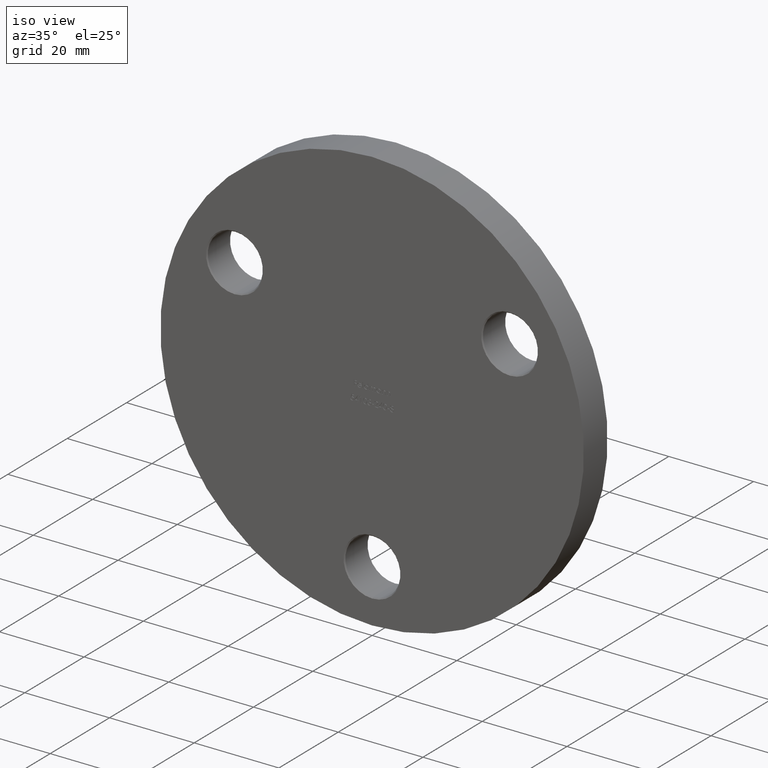
[diagram: clean part render]
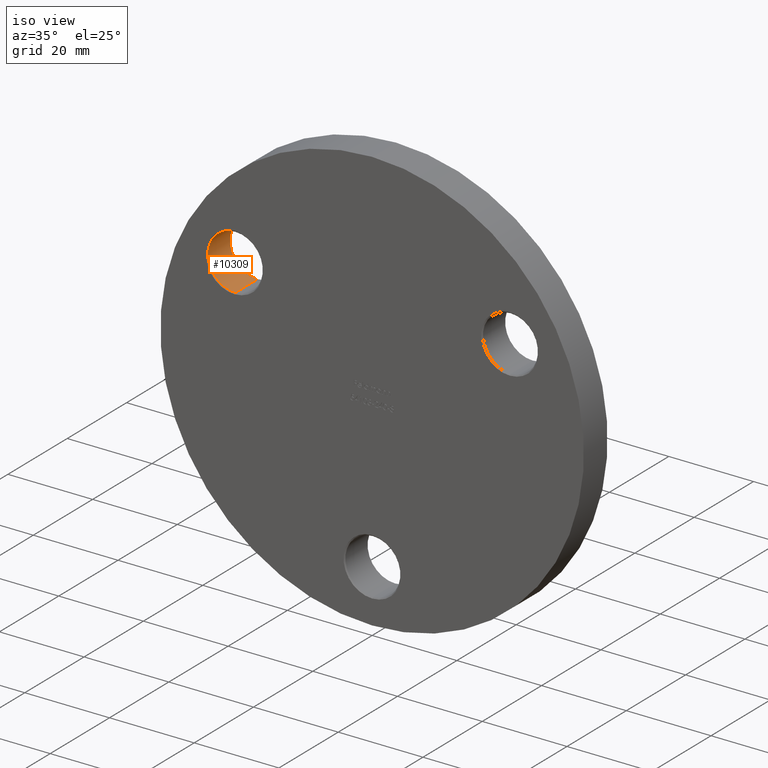
[diagram: same view with one face highlighted and labeled with its STEP entity id]
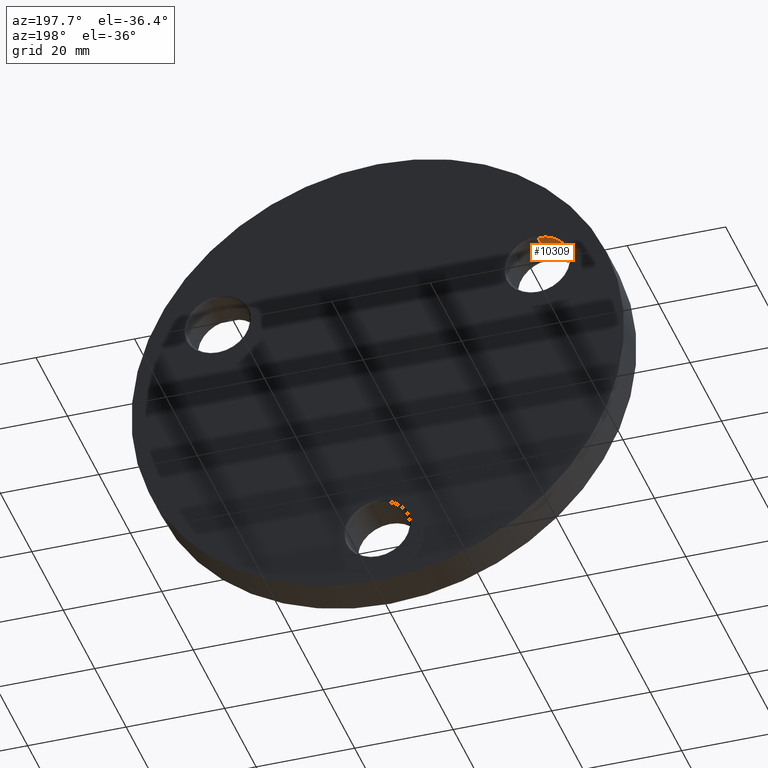
[diagram: same view with one face highlighted and labeled with its STEP entity id]
A machine part, iso view. The second image highlights one B-rep face of the part: STEP entity #10309.
A second angle (auxiliary view) of the same face is appended — the face is thin or edge-on in the first view.
In plain terms, the highlighted cylindrical surface (edge-blend (fillet) strip) has radius 6.5 mm, axis along (-0, -1, -0).
Its self-contained STEP definition (entity closure, byte-faithful):
#115 = DIRECTION ( 'NONE',  ( 0.000000000000000000, 0.000000000000000000, 1.000000000000000000 ) ) ;
#273 = LINE ( 'NONE', #985, #11805 ) ;
#566 = DIRECTION ( 'NONE',  ( 0.000000000000000000, 0.000000000000000000, -1.000000000000000000 ) ) ;
#847 = EDGE_CURVE ( 'NONE', #6099, #9186, #13849, .T. ) ;
#985 = CARTESIAN_POINT ( 'NONE',  ( -32.47595264191643594, 8.000000000000000000, 12.25000000000001599 ) ) ;
#1276 = EDGE_CURVE ( 'NONE', #12799, #6099, #8953, .T. ) ;
#1430 = CARTESIAN_POINT ( 'NONE',  ( -32.47595264191643594, 0.2499999999999941436, 18.75000000000001776 ) ) ;
#1951 = ORIENTED_EDGE ( 'NONE', *, *, #1276, .T. ) ;
#2498 = DIRECTION ( 'NONE',  ( 0.000000000000000000, 1.000000000000000000, 0.000000000000000000 ) ) ;
#2551 = DIRECTION ( 'NONE',  ( 0.000000000000000000, 0.000000000000000000, 1.000000000000000000 ) ) ;
#3042 = EDGE_LOOP ( 'NONE', ( #5181, #1951, #4963, #4873 ) ) ;
#3359 = EDGE_CURVE ( 'NONE', #9451, #12799, #10321, .T. ) ;
#4655 = CARTESIAN_POINT ( 'NONE',  ( -32.47595264191643594, 7.749999999999982236, 12.25000000000001599 ) ) ;
#4873 = ORIENTED_EDGE ( 'NONE', *, *, #11517, .F. ) ;
#4963 = ORIENTED_EDGE ( 'NONE', *, *, #847, .T. ) ;
#5115 = DIRECTION ( 'NONE',  ( -0.000000000000000000, -1.000000000000000000, -0.000000000000000000 ) ) ;
#5181 = ORIENTED_EDGE ( 'NONE', *, *, #3359, .T. ) ;
#5514 = CARTESIAN_POINT ( 'NONE',  ( -32.47595264191643594, 8.000000000000000000, 25.25000000000001421 ) ) ;
#5874 = AXIS2_PLACEMENT_3D ( 'NONE', #9613, #5115, #566 ) ;
#6099 = VERTEX_POINT ( 'NONE', #9166 ) ;
#7247 = CARTESIAN_POINT ( 'NONE',  ( -32.47595264191643594, 0.2499999999999941436, 12.25000000000001599 ) ) ;
#7633 = FACE_OUTER_BOUND ( 'NONE', #3042, .T. ) ;
#8575 = AXIS2_PLACEMENT_3D ( 'NONE', #9214, #2498, #115 ) ;
#8826 = DIRECTION ( 'NONE',  ( -0.000000000000000000, -1.000000000000000000, -0.000000000000000000 ) ) ;
#8953 = LINE ( 'NONE', #5514, #11916 ) ;
#9166 = CARTESIAN_POINT ( 'NONE',  ( -32.47595264191643594, 0.2499999999999941436, 25.25000000000001421 ) ) ;
#9186 = VERTEX_POINT ( 'NONE', #7247 ) ;
#9214 = CARTESIAN_POINT ( 'NONE',  ( -32.47595264191643594, 7.749999999999982236, 18.75000000000001776 ) ) ;
#9451 = VERTEX_POINT ( 'NONE', #4655 ) ;
#9613 = CARTESIAN_POINT ( 'NONE',  ( -32.47595264191643594, 8.000000000000000000, 18.75000000000001776 ) ) ;
#10309 = ADVANCED_FACE ( 'NONE', ( #7633 ), #10420, .F. ) ;
#10321 = CIRCLE ( 'NONE', #8575, 6.499999999999999112 ) ;
#10420 = CYLINDRICAL_SURFACE ( 'NONE', #5874, 6.500000000000000888 ) ;
#11517 = EDGE_CURVE ( 'NONE', #9451, #9186, #273, .T. ) ;
#11805 = VECTOR ( 'NONE', #8826, 1000.000000000000000 ) ;
#11916 = VECTOR ( 'NONE', #14513, 1000.000000000000000 ) ;
#12799 = VERTEX_POINT ( 'NONE', #13921 ) ;
#13240 = AXIS2_PLACEMENT_3D ( 'NONE', #1430, #13713, #2551 ) ;
#13713 = DIRECTION ( 'NONE',  ( -0.000000000000000000, -1.000000000000000000, -0.000000000000000000 ) ) ;
#13849 = CIRCLE ( 'NONE', #13240, 6.499999999999999112 ) ;
#13921 = CARTESIAN_POINT ( 'NONE',  ( -32.47595264191643594, 7.749999999999982236, 25.25000000000001421 ) ) ;
#14513 = DIRECTION ( 'NONE',  ( -0.000000000000000000, -1.000000000000000000, -0.000000000000000000 ) ) ;